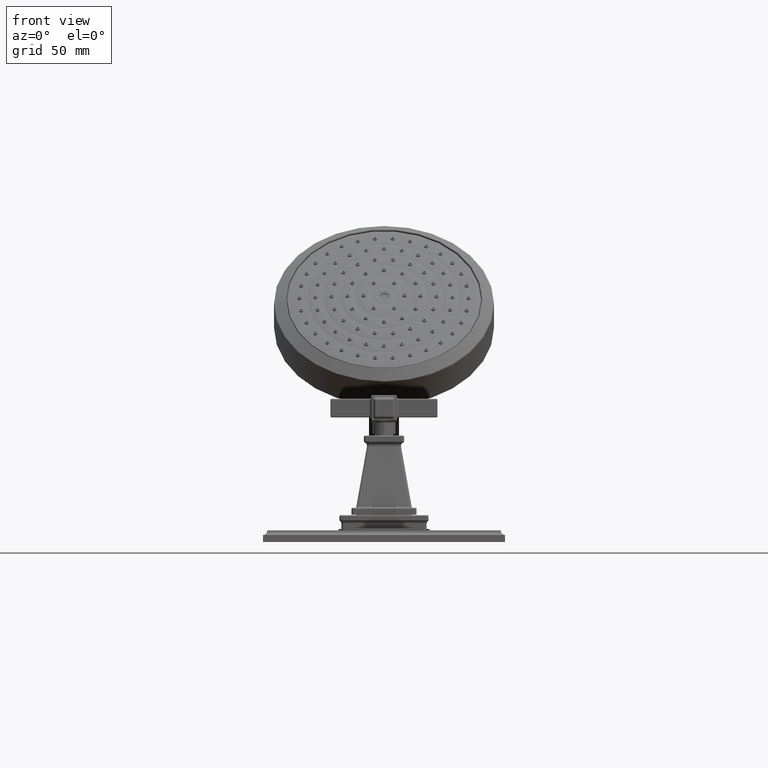
[diagram: clean part render]
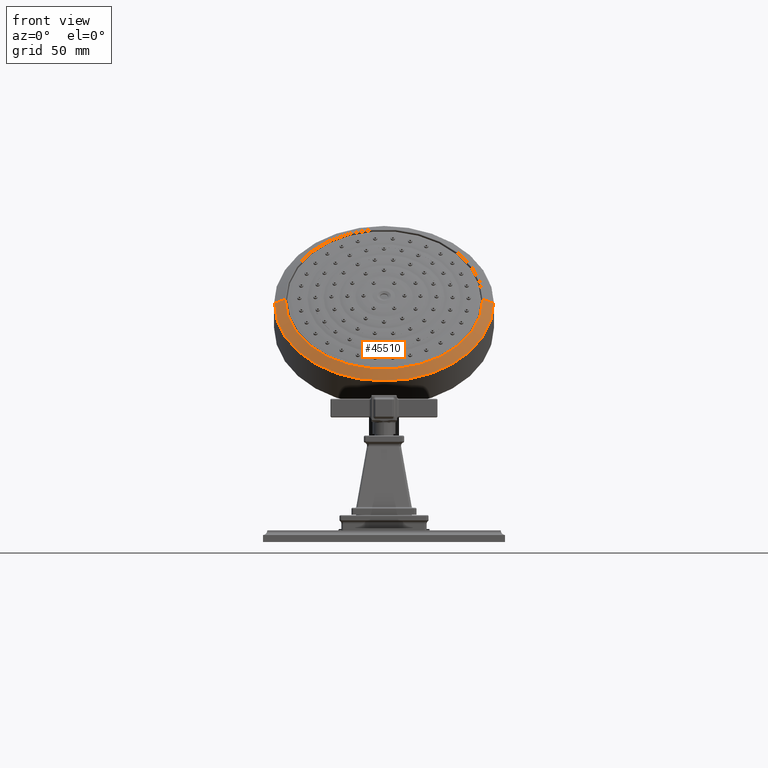
[diagram: same view with one face highlighted and labeled with its STEP entity id]
A machine part, front view. The second image highlights one B-rep face of the part: STEP entity #45510.
In plain terms, the highlighted conical surface has half-angle 60 deg.
Its self-contained STEP definition (entity closure, byte-faithful):
#28617=CARTESIAN_POINT('',(0.E0,8.569157286166E0,6.405716447987E0));
#28618=DIRECTION('',(0.E0,-7.071067811865E-1,7.071067811865E-1));
#28619=DIRECTION('',(-1.E0,0.E0,0.E0));
#28620=AXIS2_PLACEMENT_3D('',#28617,#28618,#28619);
#28622=CARTESIAN_POINT('',(0.E0,8.452451659529E0,6.522422074624E0));
#28623=DIRECTION('',(0.E0,-7.071067811865E-1,7.071067811865E-1));
#28624=DIRECTION('',(-1.E0,0.E0,0.E0));
#28625=AXIS2_PLACEMENT_3D('',#28622,#28623,#28624);
#28642=DIRECTION('',(-8.660254037844E-1,-3.535533905933E-1,3.535533905933E-1));
#28643=VECTOR('',#28642,3.300933599904E-1);
#28644=CARTESIAN_POINT('',(2.94E0,8.569157286166E0,6.405716447987E0));
#28645=LINE('',#28644,#28643);
#28651=DIRECTION('',(8.660254037844E-1,-3.535533905933E-1,3.535533905933E-1));
#28652=VECTOR('',#28651,3.300933599904E-1);
#28653=CARTESIAN_POINT('',(-2.94E0,8.569157286166E0,6.405716447987E0));
#28654=LINE('',#28653,#28652);
#35374=CARTESIAN_POINT('',(2.94E0,8.569157286166E0,6.405716447987E0));
#35375=CARTESIAN_POINT('',(-2.94E0,8.569157286166E0,6.405716447987E0));
#35376=VERTEX_POINT('',#35374);
#35377=VERTEX_POINT('',#35375);
#35382=CARTESIAN_POINT('',(-2.654130764628E0,8.452451659529E0,
6.522422074624E0));
#35383=CARTESIAN_POINT('',(2.654130764628E0,8.452451659529E0,6.522422074624E0));
#35384=VERTEX_POINT('',#35382);
#35385=VERTEX_POINT('',#35383);
#45496=CARTESIAN_POINT('',(0.E0,8.510804472848E0,6.464069261305E0));
#45497=DIRECTION('',(0.E0,7.071067811865E-1,-7.071067811865E-1));
#45498=DIRECTION('',(-1.E0,0.E0,0.E0));
#45499=AXIS2_PLACEMENT_3D('',#45496,#45497,#45498);
#45500=CONICAL_SURFACE('',#45499,2.797065382314E0,6.E1);
#45502=ORIENTED_EDGE('',*,*,#45501,.F.);
#45504=ORIENTED_EDGE('',*,*,#45503,.T.);
#45505=ORIENTED_EDGE('',*,*,#45486,.T.);
#45507=ORIENTED_EDGE('',*,*,#45506,.F.);
#45508=EDGE_LOOP('',(#45502,#45504,#45505,#45507));
#45509=FACE_OUTER_BOUND('',#45508,.F.);
#45510=ADVANCED_FACE('',(#45509),#45500,.T.);
#28621=CIRCLE('',#28620,2.94E0);
#28626=CIRCLE('',#28625,2.654130764628E0);
#45486=EDGE_CURVE('',#35384,#35385,#28626,.T.);
#45501=EDGE_CURVE('',#35377,#35376,#28621,.T.);
#45503=EDGE_CURVE('',#35377,#35384,#28654,.T.);
#45506=EDGE_CURVE('',#35376,#35385,#28645,.T.);